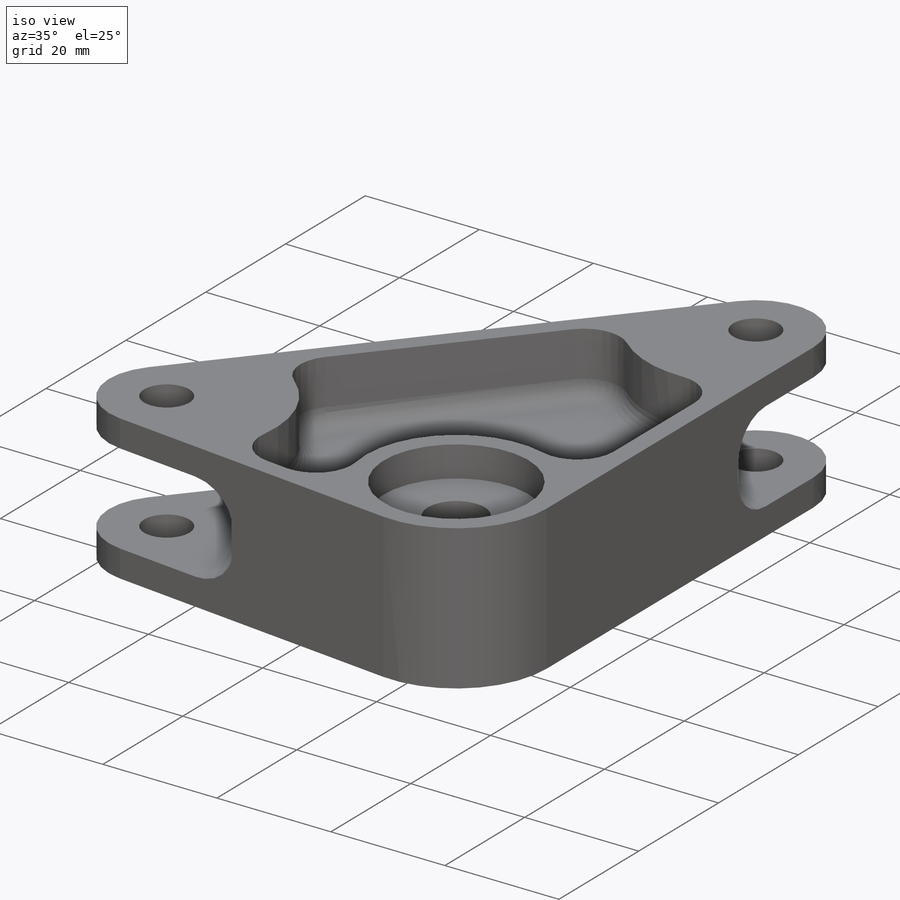
[diagram: iso view]
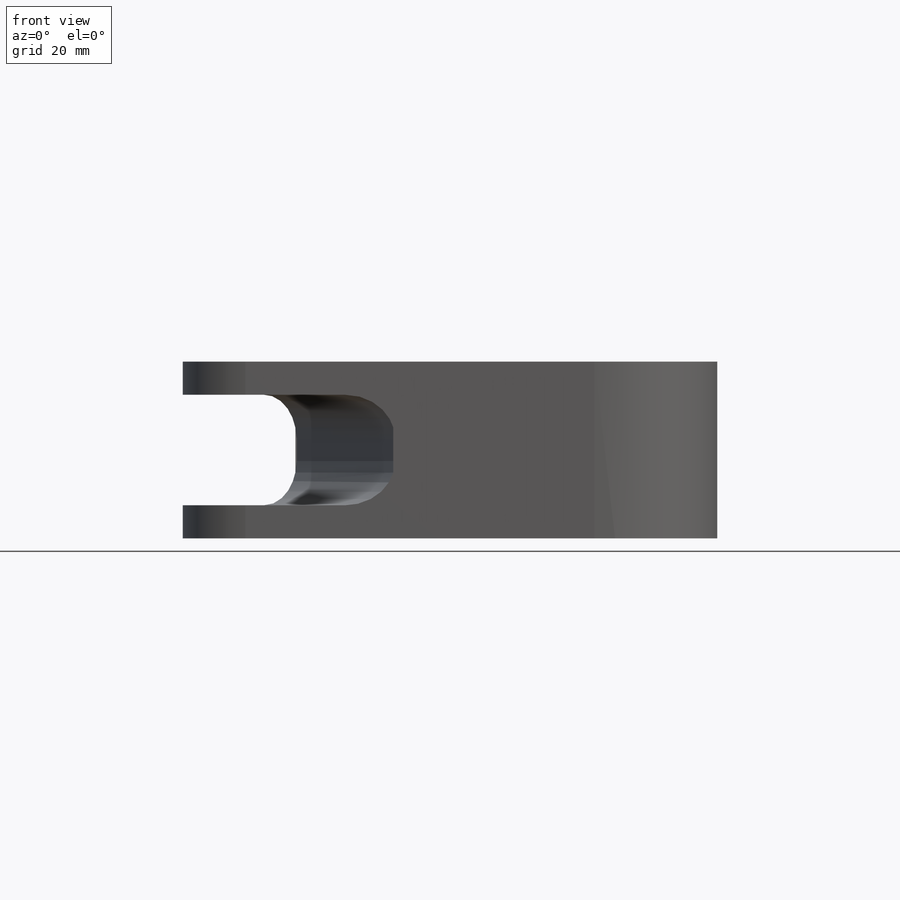
[diagram: front view]
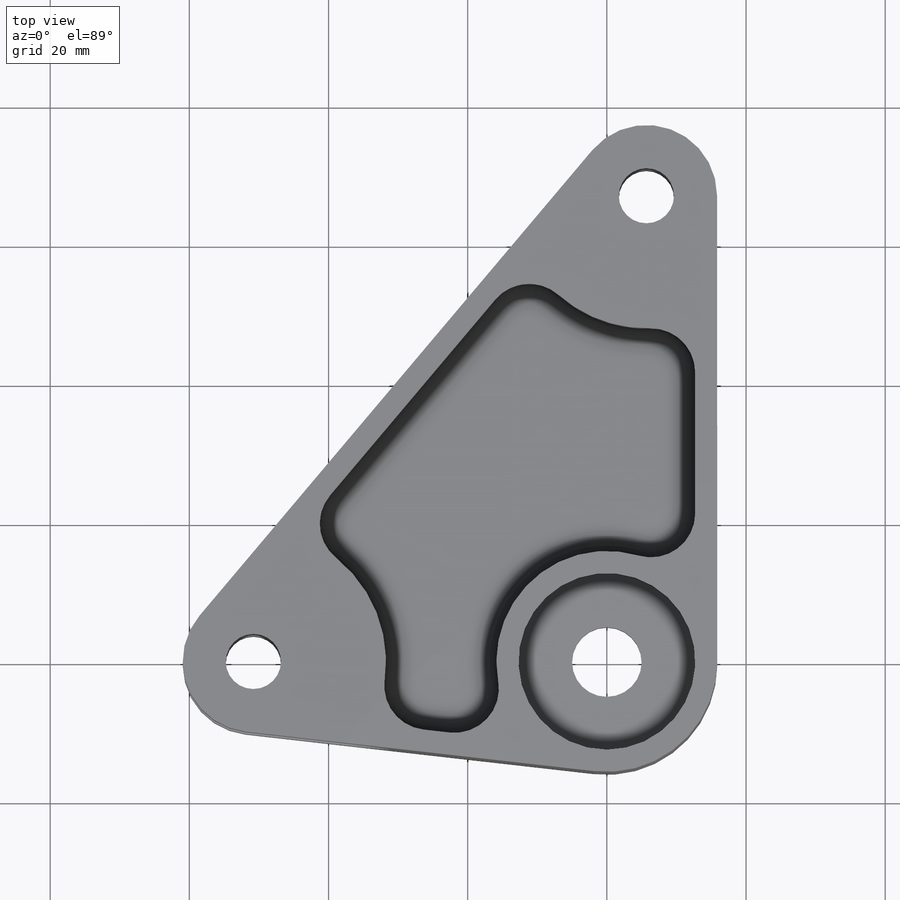
[diagram: top view]
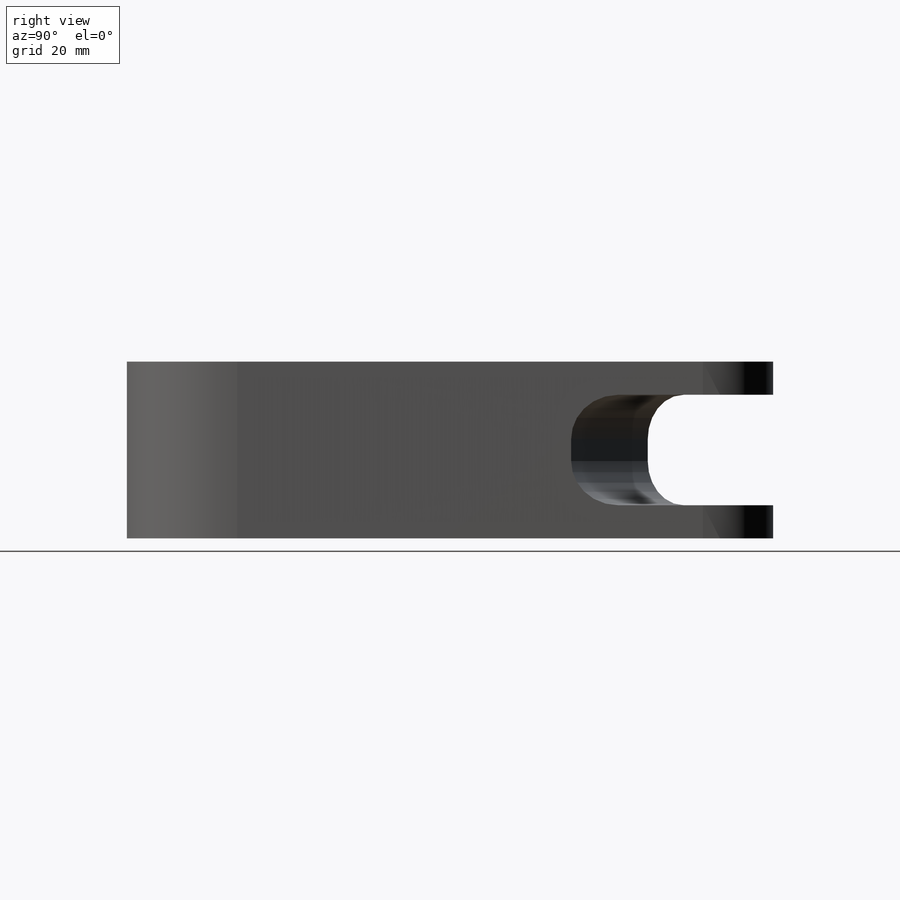
[diagram: right view]
SOLIDWORKS PART (.sldprt)
format: sldprt  version: not decoded by parser v0  size: 490,496 bytes
history: native  units: mm
features: sketch x11, cut_extrude x8, fillet x3, plane x2, material x1, extrude x1, chamfer x1 (+11 scaffold rows collapsed)
feature tree (38):
  scaffold x11  (default folders/planes/origin — collapsed)
  material  "6061 Alloy"
  sketch  "Layout"  dims[c1.D1=50.8mm c1.D2=67.183mm c1.D3=50.8mm c2.D3=94.85deg c2.D4=6.35mm c2.D5=6.35mm]
  sketch  "Sketch2"  dims[D1=15.875mm D2=10.16mm D3=10.16mm]
  extrude  "Boss-Extrude2"  Depth=25.4mm
  sketch  "Sketch3"  dims[D1=24.0mm]
  cut_extrude  "Cut-Extrude1"  Depth=15.24mm
  sketch  "Sketch5"  dims[D1=7.9375mm]
  cut_extrude  "Cut-Extrude3"  [1 undecoded]
  sketch  "Sketch4"  dims[D1=10.0mm]
  cut_extrude  "Cut-Extrude2"  [1 undecoded]
  sketch  "Sketch6"  dims[c1.D1=31.75mm c1.D2=38.1mm c2.D1=12.7mm c2.D3=2.54mm c2.D4=2.54mm c2.D5=2.54mm c3.D1=25.4mm c3.D5=2.54mm c3.D6=6.35mm c4.D1=6.35mm c4.D5=6.35mm c4.D7=15.875mm c4.D3=3.175mm c4.D4=3.175mm c5.D5=6.35mm c5.D8=3.175mm]
  cut_extrude  "Cut-Extrude4"  Depth=11.1125mm
  sketch  "Sketch8"  dims[c1.D1=31.75mm c1.D2=38.1mm c1.D3=2.54mm c1.D4=2.54mm c1.D5=2.54mm c2.D3=2.54mm c2.D6=6.35mm c2.D5=~45.186777mm c3.D3=3.175mm c3.D4=3.175mm c3.D5=3.175mm]
  cut_extrude  "Cut-Extrude5"  Depth=11.1125mm
  sketch  "Sketch10"  dims[D1=25.4mm]
  cut_extrude  "Cut-Extrude6"  Depth=5.3975mm
  sketch  "Sketch11"  dims[c1.D1=28.575mm c1.D2=12.7mm c1.D3=~11.851873mm c2.D2=12.7mm]
  plane  "Plane1"
  plane  "Plane2"
  sketch  "Sketch12"  dims[D1=4.7625mm D2=4.7625mm D3=15.875mm D4=38.1mm]
  cut_extrude  "Cut-Extrude7"  [1 undecoded]
  sketch  "Sketch15"  dims[c1.D1=4.7625mm c1.D2=4.7625mm c1.D3=25.4mm c2.D1=15.875mm c2.D2=38.1mm]
  cut_extrude  "Cut-Extrude8"  [1 undecoded]
  fillet  "Fillet1"  Radius=3.175mm
  fillet  "Fillet2"  Radius=3.175mm
  fillet  "Fillet3"  Radius=6.35mm
  chamfer  "Chamfer1"  Distance=0.635mm Angle=45deg
decode coverage: 20 of 24 modeling features carry decoded parameters
note: ~ marks probable driven/reference dimensions
note: 4 parameter values undecoded
summary: no parameter record found for 4 features
note: suppression state not decoded; provenance and decode notes live in map.json
